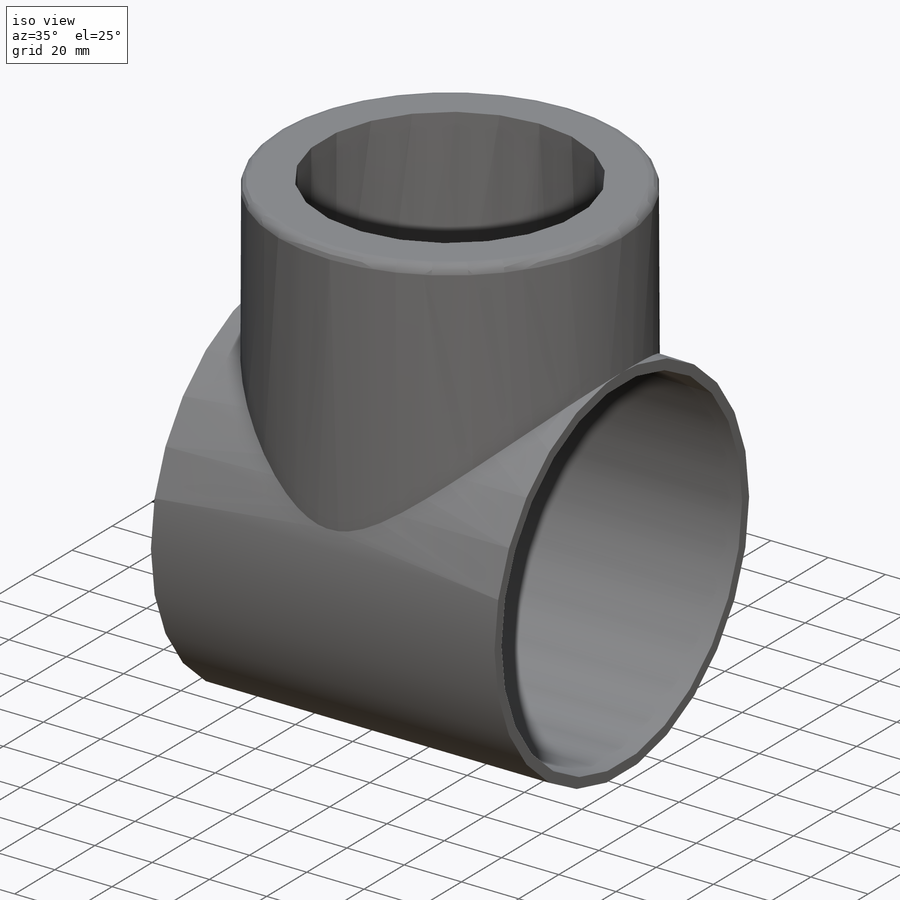
[diagram: iso view]
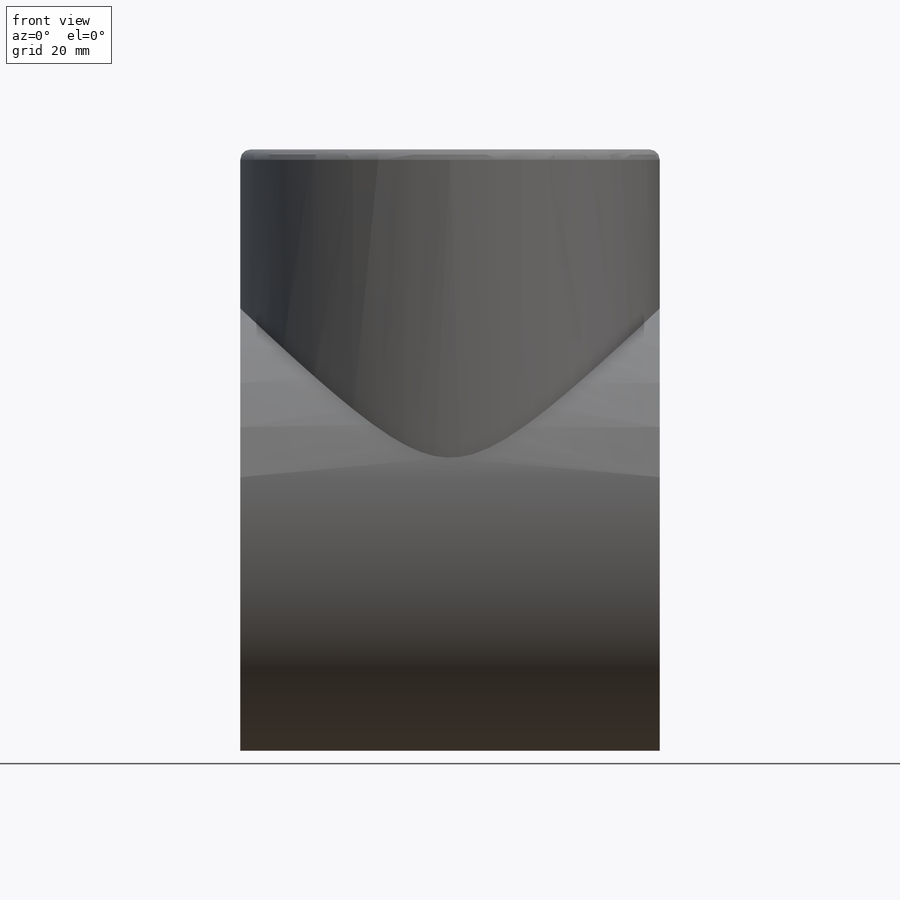
[diagram: front view]
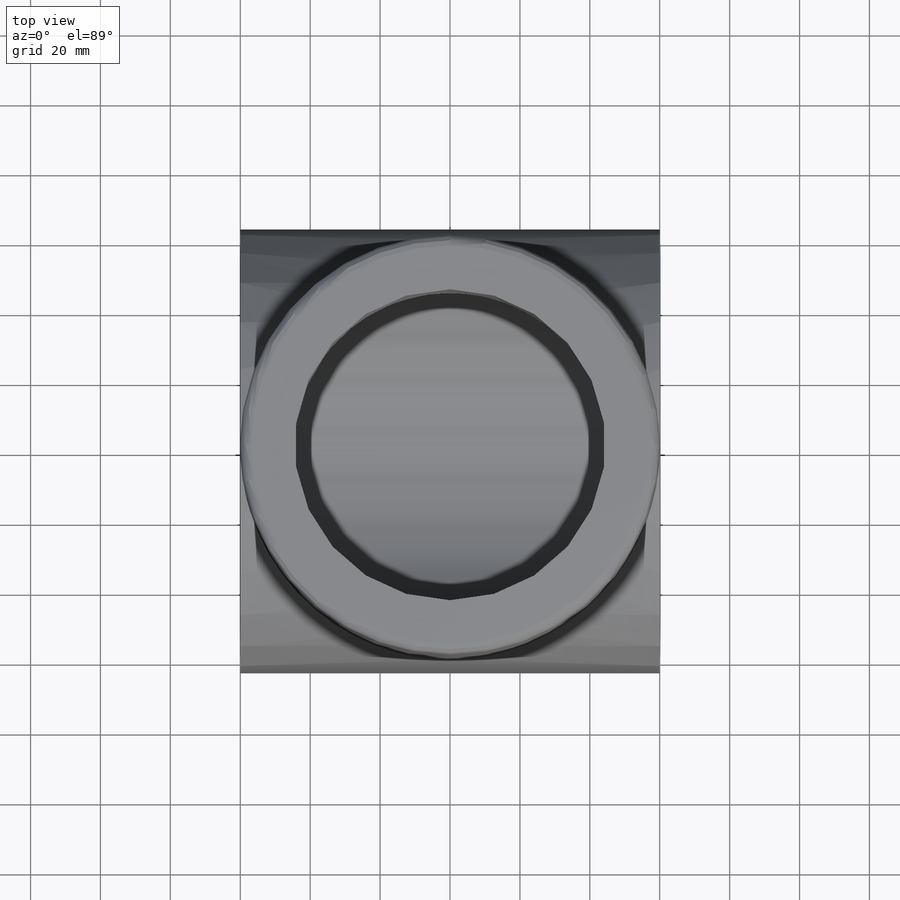
[diagram: top view]
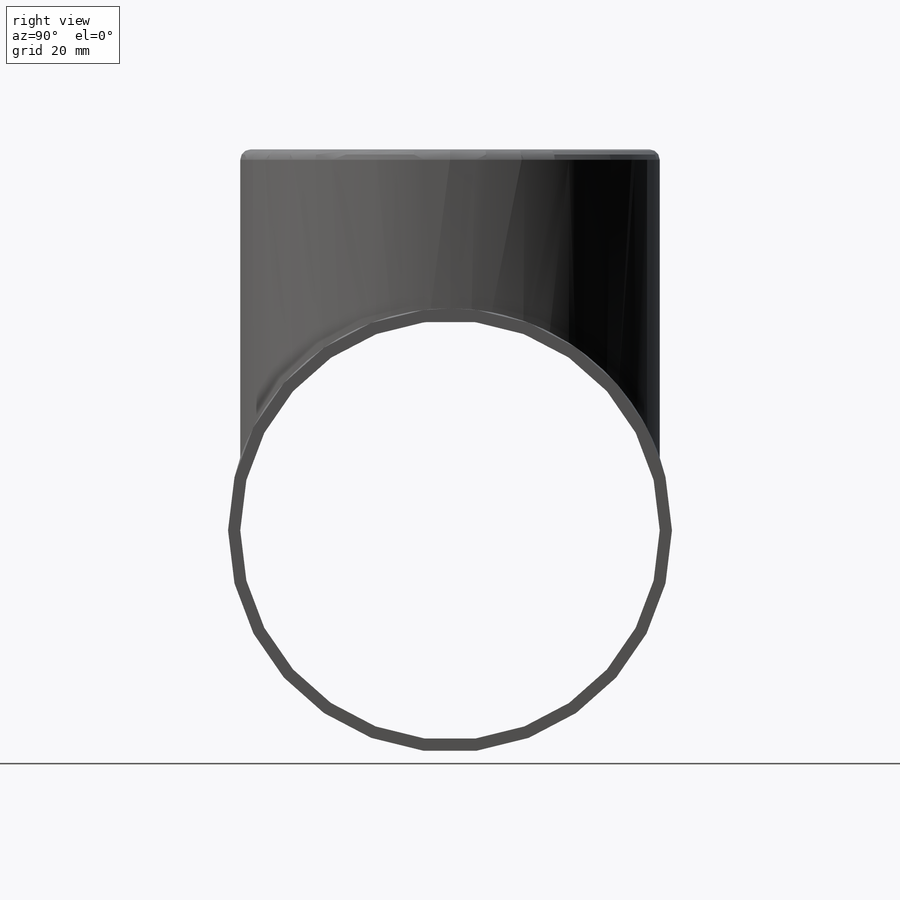
[diagram: right view]
SOLIDWORKS PART (.sldprt)
format: sldprt  version: not decoded by parser v0  size: 237,056 bytes
history: native  units: mm
features: sketch x7, plane x2, revolve x2, hole x2, fillet x2, material x1 (+11 scaffold rows collapsed)
feature tree (27):
  scaffold x11  (default folders/planes/origin — collapsed)
  material  "Material <not specified>"
  plane  "Plane1"
  sketch  "Sketch1"
  revolve  "Revolve1"  Angle=360deg
  sketch  "Sketch2"
  revolve  "Revolve2"  Angle=360deg
  hole  "Hole1"  Diameter=120mm Depth=120mm
  sketch  "Sketch4"
  sketch  "Sketch3"  dims[Diameter=120.0mm Depth=120.0mm]
  hole  "M80 Clearance Hole1"  Diameter=89mm Depth=49mm
  sketch  "Sketch6"
  sketch  "Sketch5"  dims[hole-wizard template sketch: 59 standard entries collapsed; hole parameters kept: c18.Thru Hole Dia.=89.0mm c18.Thru Hole Depth=49.0mm]
  fillet  "Fillet1"  Radius=3mm
  plane  "Plane2"
  sketch  "Sketch7"
  fillet  "shoulder_yaw_joint"  [1 undecoded]
decode coverage: 7 of 13 modeling features carry decoded parameters
note: ~ marks probable driven/reference dimensions
note: 1 parameter value undecoded
note: suppression state not decoded; provenance and decode notes live in map.json
